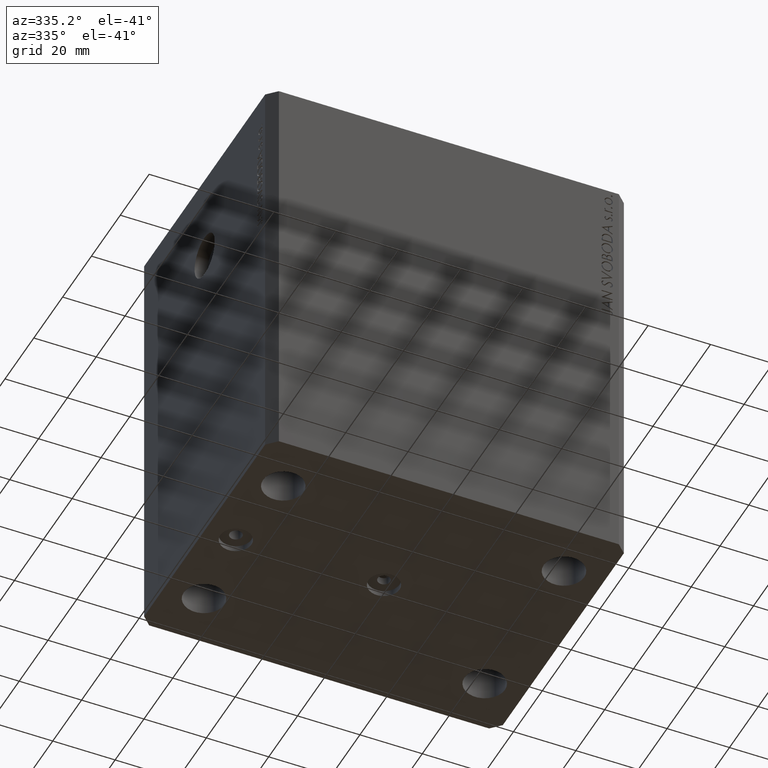
[diagram: clean part render]
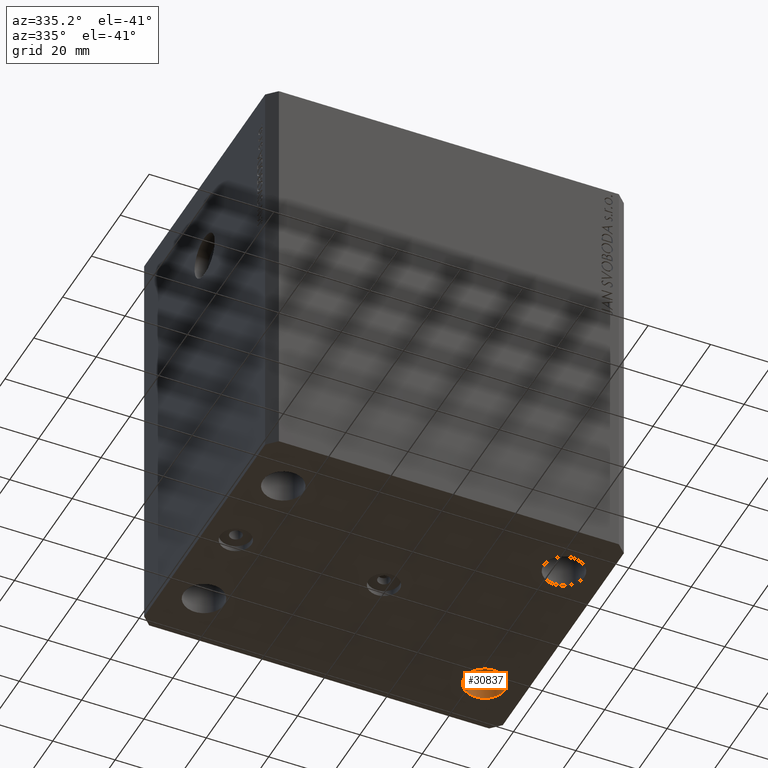
[diagram: same view with one face highlighted and labeled with its STEP entity id]
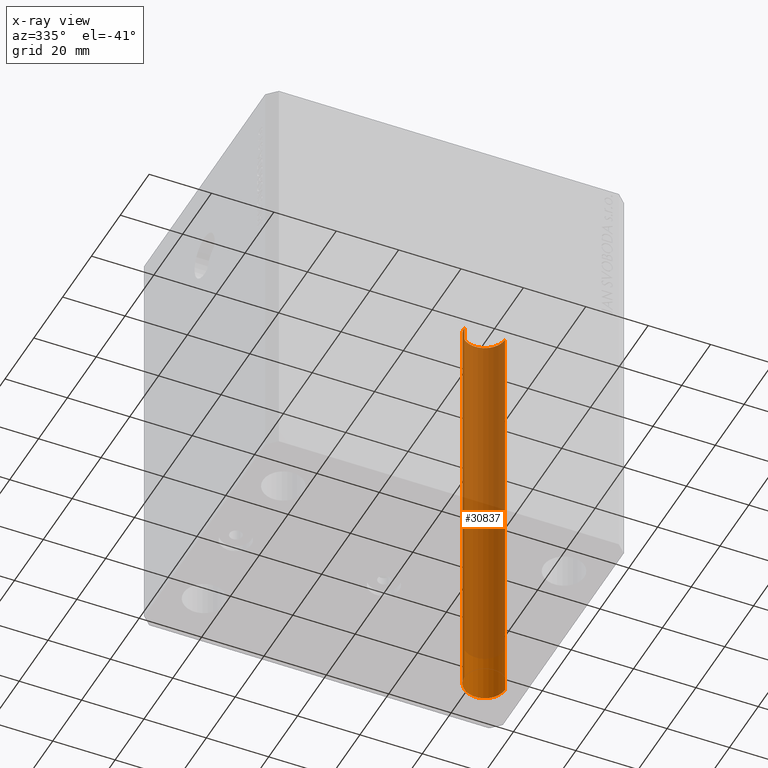
[diagram: x-ray of the same camera — body ghosted, the highlighted face saturated]
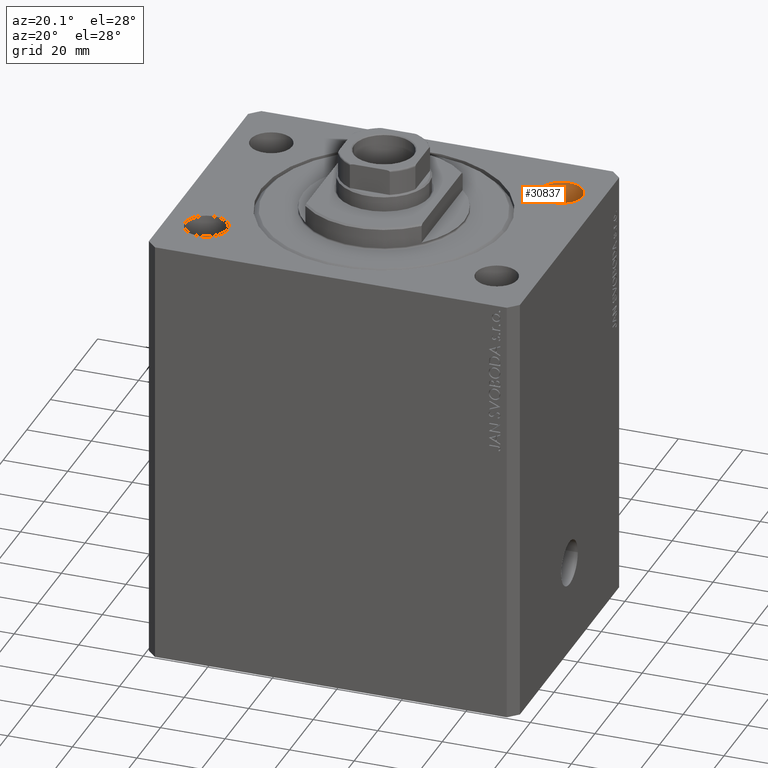
[diagram: same view with one face highlighted and labeled with its STEP entity id]
A machine part, auxiliary view. The second image highlights one B-rep face of the part: STEP entity #30837.
The next image is the same camera in x-ray: the body ghosted, the highlighted face saturated — about 89% of this face is hidden behind the body in this view.
A second angle (auxiliary view) of the same face is appended — the face is thin or edge-on in the first view.
In plain terms, the highlighted cylindrical surface (edge-blend (fillet) strip) has radius 6.5 mm, axis along (0, 0, 1).
Its self-contained STEP definition (entity closure, byte-faithful):
#70 = DIRECTION ( 'NONE',  ( 1.000000000000000000, 0.000000000000000000, 0.000000000000000000 ) ) ;
#1674 = EDGE_LOOP ( 'NONE', ( #19470, #35277, #27741, #24467 ) ) ;
#2882 = EDGE_CURVE ( 'NONE', #25951, #16665, #42959, .T. ) ;
#4435 = CARTESIAN_POINT ( 'NONE',  ( 38.50000000000000000, 27.49999999999999289, 0.000000000000000000 ) ) ;
#5054 = VECTOR ( 'NONE', #5253, 1000.000000000000000 ) ;
#5253 = DIRECTION ( 'NONE',  ( -0.000000000000000000, -0.000000000000000000, 1.000000000000000000 ) ) ;
#6200 = EDGE_CURVE ( 'NONE', #25244, #16665, #35031, .T. ) ;
#7789 = CARTESIAN_POINT ( 'NONE',  ( 51.50000000000000000, 27.49999999999999289, -135.0000000000000000 ) ) ;
#8186 = CARTESIAN_POINT ( 'NONE',  ( 38.50000000000000000, 27.49999999999999289, -153.3847763108502420 ) ) ;
#9378 = CARTESIAN_POINT ( 'NONE',  ( 38.50000000000000000, 27.49999999999999289, -135.0000000000000000 ) ) ;
#11337 = LINE ( 'NONE', #23061, #5054 ) ;
#12432 = FACE_OUTER_BOUND ( 'NONE', #1674, .T. ) ;
#13726 = EDGE_CURVE ( 'NONE', #30120, #25951, #11337, .T. ) ;
#14232 = VECTOR ( 'NONE', #21963, 1000.000000000000000 ) ;
#15819 = DIRECTION ( 'NONE',  ( -0.000000000000000000, -0.000000000000000000, 1.000000000000000000 ) ) ;
#16665 = VERTEX_POINT ( 'NONE', #4435 ) ;
#17008 = CARTESIAN_POINT ( 'NONE',  ( 45.00000000000000000, 27.49999999999999289, -135.0000000000000000 ) ) ;
#18484 = CIRCLE ( 'NONE', #34991, 6.499999999999999112 ) ;
#19470 = ORIENTED_EDGE ( 'NONE', *, *, #6200, .F. ) ;
#19842 = DIRECTION ( 'NONE',  ( 0.000000000000000000, 0.000000000000000000, 1.000000000000000000 ) ) ;
#20637 = AXIS2_PLACEMENT_3D ( 'NONE', #43738, #19842, #36322 ) ;
#21963 = DIRECTION ( 'NONE',  ( -0.000000000000000000, -0.000000000000000000, 1.000000000000000000 ) ) ;
#23061 = CARTESIAN_POINT ( 'NONE',  ( 51.50000000000000000, 27.49999999999999289, -153.3847763108502420 ) ) ;
#23218 = AXIS2_PLACEMENT_3D ( 'NONE', #29789, #15819, #39936 ) ;
#24467 = ORIENTED_EDGE ( 'NONE', *, *, #2882, .T. ) ;
#25244 = VERTEX_POINT ( 'NONE', #9378 ) ;
#25951 = VERTEX_POINT ( 'NONE', #38054 ) ;
#26186 = CYLINDRICAL_SURFACE ( 'NONE', #23218, 6.499999999999999112 ) ;
#27741 = ORIENTED_EDGE ( 'NONE', *, *, #13726, .T. ) ;
#29789 = CARTESIAN_POINT ( 'NONE',  ( 45.00000000000000000, 27.49999999999999289, -153.3847763108502420 ) ) ;
#30120 = VERTEX_POINT ( 'NONE', #7789 ) ;
#30746 = DIRECTION ( 'NONE',  ( -0.000000000000000000, -0.000000000000000000, -1.000000000000000000 ) ) ;
#30837 = ADVANCED_FACE ( 'NONE', ( #12432 ), #26186, .F. ) ;
#34991 = AXIS2_PLACEMENT_3D ( 'NONE', #17008, #30746, #70 ) ;
#35031 = LINE ( 'NONE', #8186, #14232 ) ;
#35277 = ORIENTED_EDGE ( 'NONE', *, *, #42132, .T. ) ;
#36322 = DIRECTION ( 'NONE',  ( 1.000000000000000000, 0.000000000000000000, 0.000000000000000000 ) ) ;
#38054 = CARTESIAN_POINT ( 'NONE',  ( 51.50000000000000000, 27.49999999999999289, 0.000000000000000000 ) ) ;
#39936 = DIRECTION ( 'NONE',  ( 1.000000000000000000, 0.000000000000000000, 0.000000000000000000 ) ) ;
#42132 = EDGE_CURVE ( 'NONE', #25244, #30120, #18484, .T. ) ;
#42959 = CIRCLE ( 'NONE', #20637, 6.499999999999999112 ) ;
#43738 = CARTESIAN_POINT ( 'NONE',  ( 45.00000000000000000, 27.49999999999999289, 0.000000000000000000 ) ) ;